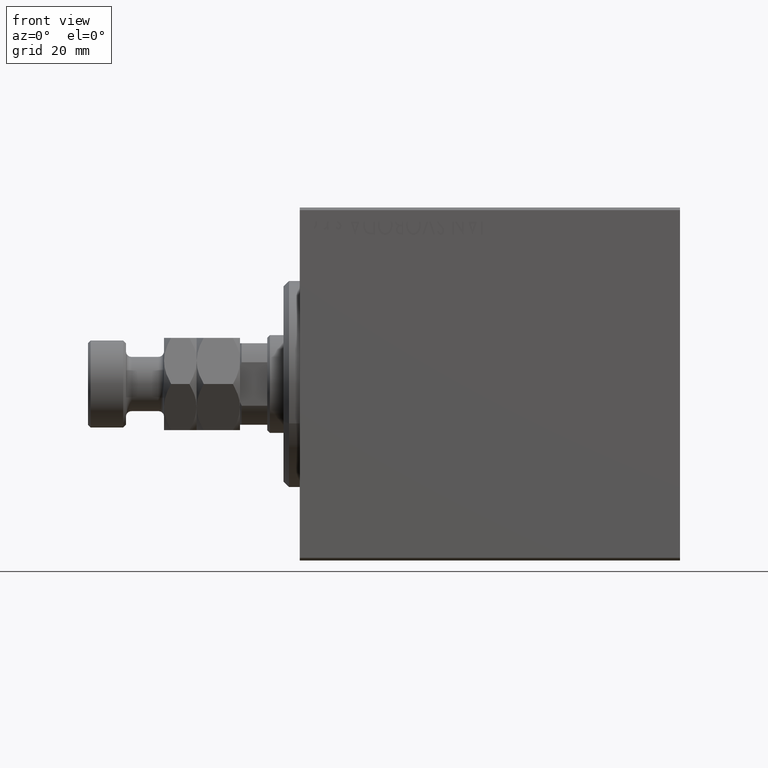
[diagram: clean part render]
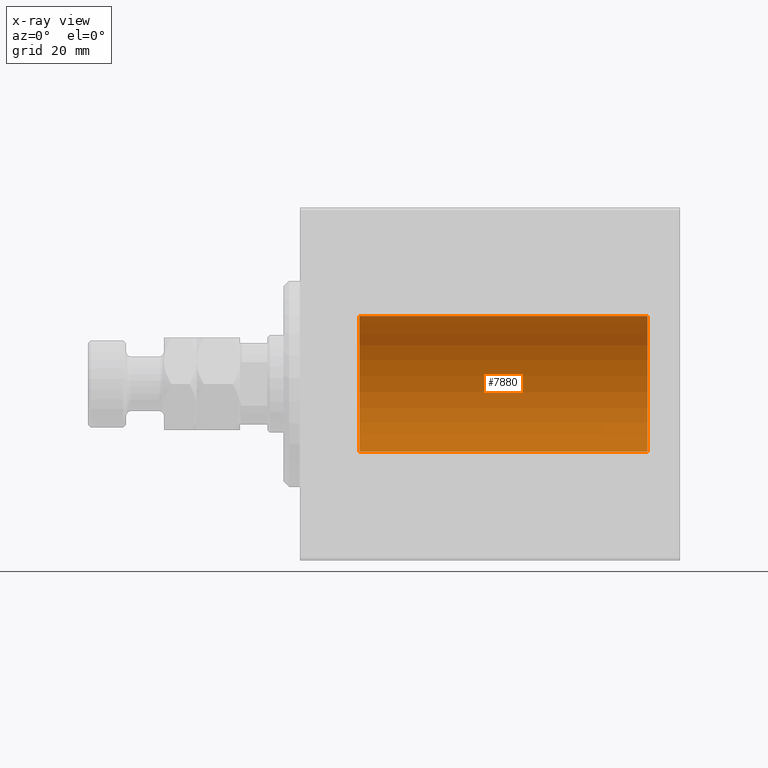
[diagram: x-ray — body ghosted, one internal face saturated and labeled with its STEP entity id]
A machine part, front view, then the same camera in x-ray: the body is ghosted and one INTERNAL B-rep face — a face not visible from any outside direction — is saturated and labeled: STEP entity #7880.
In plain terms, the highlighted cylindrical surface (partial cylindrical patch) has radius 12.5 mm, axis along (-1, -0, -0).
Its self-contained STEP definition (entity closure, byte-faithful):
#308 = ORIENTED_EDGE ( 'NONE', *, *, #14241, .T. ) ;
#1002 = LINE ( 'NONE', #29498, #5563 ) ;
#2134 = CARTESIAN_POINT ( 'NONE',  ( 64.00000000000000000, 0.000000000000000000, 12.50000000000000000 ) ) ;
#5077 = DIRECTION ( 'NONE',  ( 0.000000000000000000, 0.000000000000000000, 1.000000000000000000 ) ) ;
#5563 = VECTOR ( 'NONE', #15257, 1000.000000000000000 ) ;
#5752 = CYLINDRICAL_SURFACE ( 'NONE', #40648, 12.50000000000000000 ) ;
#7309 = CARTESIAN_POINT ( 'NONE',  ( 64.00000000000000000, 0.000000000000000000, 0.000000000000000000 ) ) ;
#7880 = ADVANCED_FACE ( 'NONE', ( #19081 ), #5752, .F. ) ;
#11508 = EDGE_CURVE ( 'NONE', #33134, #29788, #1002, .T. ) ;
#11713 = VERTEX_POINT ( 'NONE', #27611 ) ;
#14080 = CIRCLE ( 'NONE', #44138, 12.50000000000000000 ) ;
#14241 = EDGE_CURVE ( 'NONE', #29788, #39163, #36665, .T. ) ;
#15257 = DIRECTION ( 'NONE',  ( -1.000000000000000000, -0.000000000000000000, -0.000000000000000000 ) ) ;
#15411 = CARTESIAN_POINT ( 'NONE',  ( 64.00000000000000000, 0.000000000000000000, 0.000000000000000000 ) ) ;
#15809 = DIRECTION ( 'NONE',  ( -1.000000000000000000, 0.000000000000000000, 0.000000000000000000 ) ) ;
#15880 = EDGE_LOOP ( 'NONE', ( #32746, #18373, #30301, #308 ) ) ;
#16716 = DIRECTION ( 'NONE',  ( 0.000000000000000000, 0.000000000000000000, 1.000000000000000000 ) ) ;
#18373 = ORIENTED_EDGE ( 'NONE', *, *, #25234, .F. ) ;
#19081 = FACE_OUTER_BOUND ( 'NONE', #15880, .T. ) ;
#21855 = VECTOR ( 'NONE', #41304, 1000.000000000000000 ) ;
#22156 = CARTESIAN_POINT ( 'NONE',  ( 10.99999999999999645, 1.530808498934191521E-15, -12.50000000000000000 ) ) ;
#25234 = EDGE_CURVE ( 'NONE', #33134, #11713, #14080, .T. ) ;
#27611 = CARTESIAN_POINT ( 'NONE',  ( 64.00000000000000000, 1.530808498934191521E-15, -12.50000000000000000 ) ) ;
#29498 = CARTESIAN_POINT ( 'NONE',  ( 64.00000000000000000, 0.000000000000000000, 12.50000000000000000 ) ) ;
#29647 = DIRECTION ( 'NONE',  ( -1.000000000000000000, -0.000000000000000000, -0.000000000000000000 ) ) ;
#29788 = VERTEX_POINT ( 'NONE', #36210 ) ;
#30301 = ORIENTED_EDGE ( 'NONE', *, *, #11508, .T. ) ;
#30973 = LINE ( 'NONE', #34426, #21855 ) ;
#32746 = ORIENTED_EDGE ( 'NONE', *, *, #42556, .F. ) ;
#33134 = VERTEX_POINT ( 'NONE', #2134 ) ;
#33756 = CARTESIAN_POINT ( 'NONE',  ( 10.99999999999999645, 0.000000000000000000, 0.000000000000000000 ) ) ;
#34426 = CARTESIAN_POINT ( 'NONE',  ( 64.00000000000000000, 1.530808498934191521E-15, -12.50000000000000000 ) ) ;
#36210 = CARTESIAN_POINT ( 'NONE',  ( 10.99999999999999645, 0.000000000000000000, 12.50000000000000000 ) ) ;
#36665 = CIRCLE ( 'NONE', #38862, 12.50000000000000000 ) ;
#38862 = AXIS2_PLACEMENT_3D ( 'NONE', #33756, #15809, #16716 ) ;
#39163 = VERTEX_POINT ( 'NONE', #22156 ) ;
#40648 = AXIS2_PLACEMENT_3D ( 'NONE', #15411, #29647, #5077 ) ;
#41304 = DIRECTION ( 'NONE',  ( -1.000000000000000000, -0.000000000000000000, -0.000000000000000000 ) ) ;
#41545 = DIRECTION ( 'NONE',  ( -1.000000000000000000, 0.000000000000000000, 0.000000000000000000 ) ) ;
#42009 = DIRECTION ( 'NONE',  ( 0.000000000000000000, 0.000000000000000000, 1.000000000000000000 ) ) ;
#42556 = EDGE_CURVE ( 'NONE', #11713, #39163, #30973, .T. ) ;
#44138 = AXIS2_PLACEMENT_3D ( 'NONE', #7309, #41545, #42009 ) ;